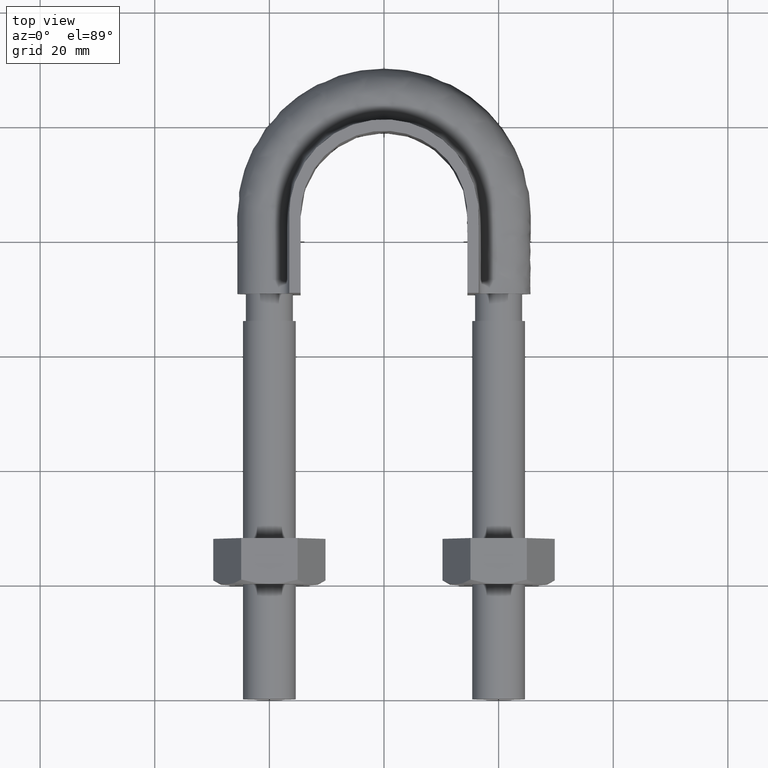
[diagram: clean part render]
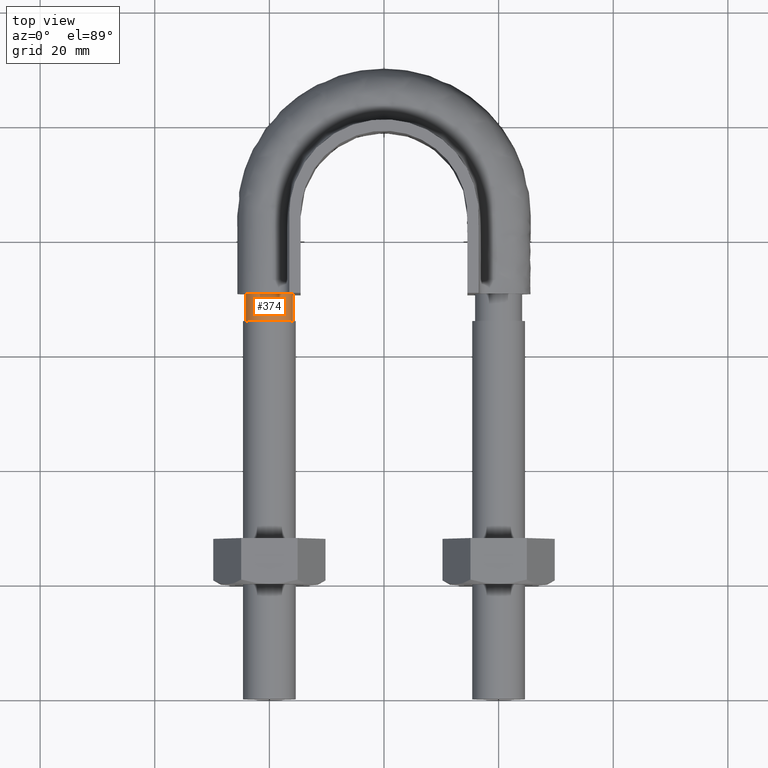
[diagram: same view with one face highlighted and labeled with its STEP entity id]
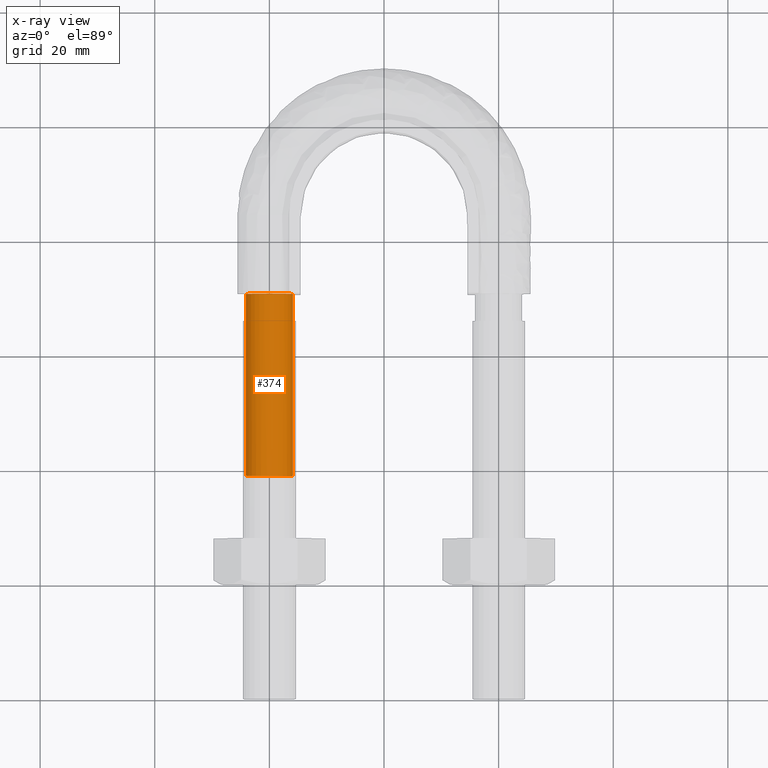
[diagram: x-ray of the same camera — body ghosted, the highlighted face saturated]
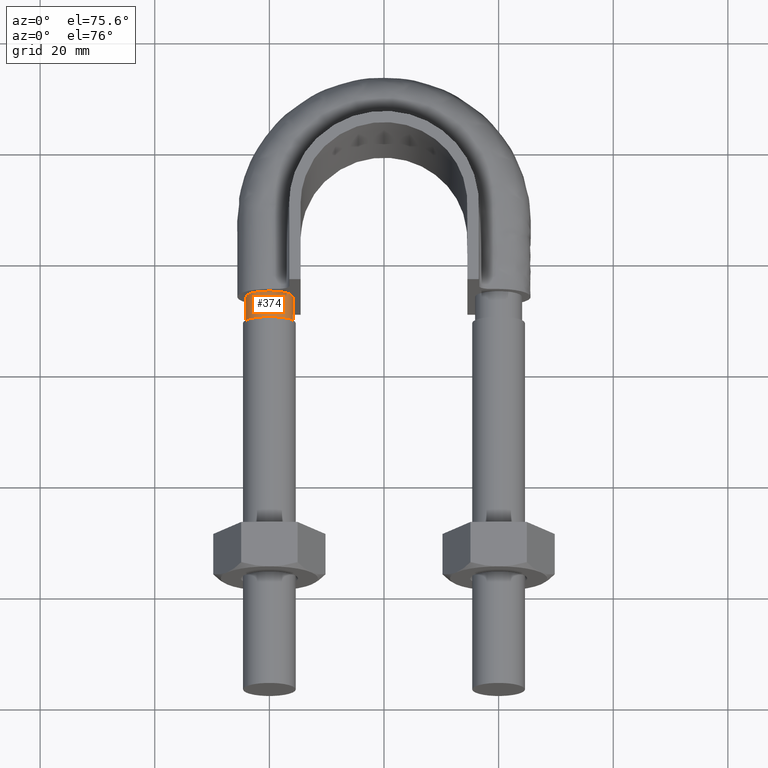
[diagram: same view with one face highlighted and labeled with its STEP entity id]
A machine part, top view. The second image highlights one B-rep face of the part: STEP entity #374.
The next image is the same camera in x-ray: the body ghosted, the highlighted face saturated — about 0% of this face is hidden behind the body in this view.
A second angle (auxiliary view) of the same face is appended — the face is thin or edge-on in the first view.
In plain terms, the highlighted cylindrical surface (bore or boss wall) has radius 4.1 mm, axis along (0, 1, 0).
Its self-contained STEP definition (entity closure, byte-faithful):
#374 = ADVANCED_FACE( '', ( #463, #464 ), #465, .T. );
#463 = FACE_OUTER_BOUND( '', #1282, .T. );
#464 = FACE_OUTER_BOUND( '', #1283, .T. );
#465 = CYLINDRICAL_SURFACE( '', #1284, 4.10000000000000 );
#1282 = EDGE_LOOP( '', ( #1654, #1655, #1656, #1657, #1658, #1659, #1660 ) );
#1283 = EDGE_LOOP( '', ( #1661 ) );
#1284 = AXIS2_PLACEMENT_3D( '', #1662, #1663, #1664 );
#1654 = ORIENTED_EDGE( '', *, *, #2101, .T. );
#1655 = ORIENTED_EDGE( '', *, *, #2102, .T. );
#1656 = ORIENTED_EDGE( '', *, *, #2103, .T. );
#1657 = ORIENTED_EDGE( '', *, *, #2104, .T. );
#1658 = ORIENTED_EDGE( '', *, *, #2105, .T. );
#1659 = ORIENTED_EDGE( '', *, *, #2106, .T. );
#1660 = ORIENTED_EDGE( '', *, *, #2100, .T. );
#1661 = ORIENTED_EDGE( '', *, *, #2107, .F. );
#1662 = CARTESIAN_POINT( '', ( -20.0000000000000, 70.7200000000000, 1.98080077730770E-015 ) );
#1663 = DIRECTION( '', ( 4.89842541528951E-016, 1.00000000000000, 6.12303176911189E-017 ) );
#1664 = DIRECTION( '', ( 1.00000000000000, -4.89842541528951E-016, -2.24949108273321E-032 ) );
#2100 = EDGE_CURVE( '', #2252, #2251, #2254, .T. );
#2101 = EDGE_CURVE( '', #2251, #2255, #2256, .T. );
#2102 = EDGE_CURVE( '', #2255, #2257, #2258, .T. );
#2103 = EDGE_CURVE( '', #2257, #2259, #2260, .T. );
#2104 = EDGE_CURVE( '', #2259, #2261, #2262, .T. );
#2105 = EDGE_CURVE( '', #2261, #2263, #2264, .T. );
#2106 = EDGE_CURVE( '', #2263, #2252, #2265, .T. );
#2107 = EDGE_CURVE( '', #2266, #2266, #2267, .T. );
#2251 = VERTEX_POINT( '', #2628 );
#2252 = VERTEX_POINT( '', #2629 );
#2254 = CIRCLE( '', #2634, 4.10000000000000 );
#2255 = VERTEX_POINT( '', #2635 );
#2256 = CIRCLE( '', #2636, 4.10000000000000 );
#2257 = VERTEX_POINT( '', #2637 );
#2258 = CIRCLE( '', #2638, 4.10000000000000 );
#2259 = VERTEX_POINT( '', #2639 );
#2260 = CIRCLE( '', #2640, 4.10000000000000 );
#2261 = VERTEX_POINT( '', #2641 );
#2262 = CIRCLE( '', #2642, 4.10000000000000 );
#2263 = VERTEX_POINT( '', #2643 );
#2264 = CIRCLE( '', #2644, 4.10000000000000 );
#2265 = CIRCLE( '', #2645, 4.10000000000000 );
#2266 = VERTEX_POINT( '', #2646 );
#2267 = CIRCLE( '', #2647, 4.10000000000000 );
#2628 = CARTESIAN_POINT( '', ( -15.9000000000000, 70.7200000000000, 4.33680868994202E-016 ) );
#2629 = CARTESIAN_POINT( '', ( -17.4436918123792, 70.7200000000000, -3.20550907811894 ) );
#2634 = AXIS2_PLACEMENT_3D( '', #3047, #3048, #3049 );
#2635 = CARTESIAN_POINT( '', ( -17.4436918123816, 70.7200000000000, 3.20550907812084 ) );
#2636 = AXIS2_PLACEMENT_3D( '', #3050, #3051, #3052 );
#2637 = CARTESIAN_POINT( '', ( -20.9123358292213, 70.7200000000000, 3.99720443994539 ) );
#2638 = AXIS2_PLACEMENT_3D( '', #3053, #3054, #3055 );
#2639 = CARTESIAN_POINT( '', ( -23.6939723584000, 70.7200000000000, 1.77892333038186 ) );
#2640 = AXIS2_PLACEMENT_3D( '', #3056, #3057, #3058 );
#2641 = CARTESIAN_POINT( '', ( -23.6939723583999, 70.7200000000000, -1.77892333038200 ) );
#2642 = AXIS2_PLACEMENT_3D( '', #3059, #3060, #3061 );
#2643 = CARTESIAN_POINT( '', ( -20.9123358292209, 70.7200000000000, -3.99720443994546 ) );
#2644 = AXIS2_PLACEMENT_3D( '', #3062, #3063, #3064 );
#2645 = AXIS2_PLACEMENT_3D( '', #3065, #3066, #3067 );
#2646 = CARTESIAN_POINT( '', ( -15.9000000000000, 39.0000000000000, 3.85751001454052E-017 ) );
#2647 = AXIS2_PLACEMENT_3D( '', #3068, #3069, #3070 );
#3047 = CARTESIAN_POINT( '', ( -20.0000000000000, 70.7200000000000, 1.98080077730770E-015 ) );
#3048 = DIRECTION( '', ( -4.89842541528951E-016, -1.00000000000000, -6.12303176911189E-017 ) );
#3049 = DIRECTION( '', ( 1.00000000000000, -4.89842541528951E-016, -2.10269764185003E-032 ) );
#3050 = CARTESIAN_POINT( '', ( -20.0000000000000, 70.7200000000000, 1.98080077730770E-015 ) );
#3051 = DIRECTION( '', ( -4.89842541528951E-016, -1.00000000000000, -6.12303176911189E-017 ) );
#3052 = DIRECTION( '', ( 1.00000000000000, -4.89842541528951E-016, -2.10269764185003E-032 ) );
#3053 = CARTESIAN_POINT( '', ( -20.0000000000000, 70.7200000000000, 1.98080077730770E-015 ) );
#3054 = DIRECTION( '', ( -4.89842541528951E-016, -1.00000000000000, -6.12303176911189E-017 ) );
#3055 = DIRECTION( '', ( 1.00000000000000, -4.89842541528951E-016, -2.10269764185003E-032 ) );
#3056 = CARTESIAN_POINT( '', ( -20.0000000000000, 70.7200000000000, 1.98080077730770E-015 ) );
#3057 = DIRECTION( '', ( -4.89842541528951E-016, -1.00000000000000, -6.12303176911189E-017 ) );
#3058 = DIRECTION( '', ( 1.00000000000000, -4.89842541528951E-016, -2.10269764185003E-032 ) );
#3059 = CARTESIAN_POINT( '', ( -20.0000000000000, 70.7200000000000, 1.98080077730770E-015 ) );
#3060 = DIRECTION( '', ( -4.89842541528951E-016, -1.00000000000000, -6.12303176911189E-017 ) );
#3061 = DIRECTION( '', ( 1.00000000000000, -4.89842541528951E-016, -2.10269764185003E-032 ) );
#3062 = CARTESIAN_POINT( '', ( -20.0000000000000, 70.7200000000000, 1.98080077730770E-015 ) );
#3063 = DIRECTION( '', ( -4.89842541528951E-016, -1.00000000000000, -6.12303176911189E-017 ) );
#3064 = DIRECTION( '', ( 1.00000000000000, -4.89842541528951E-016, -2.10269764185003E-032 ) );
#3065 = CARTESIAN_POINT( '', ( -20.0000000000000, 70.7200000000000, 1.98080077730770E-015 ) );
#3066 = DIRECTION( '', ( -4.89842541528951E-016, -1.00000000000000, -6.12303176911189E-017 ) );
#3067 = DIRECTION( '', ( 1.00000000000000, -4.89842541528951E-016, -2.10269764185003E-032 ) );
#3068 = CARTESIAN_POINT( '', ( -20.0000000000000, 39.0000000000000, 3.85751001454053E-017 ) );
#3069 = DIRECTION( '', ( -4.89842541528951E-016, -1.00000000000000, -6.12303176911189E-017 ) );
#3070 = DIRECTION( '', ( 1.00000000000000, -4.89842541528951E-016, -2.10269764185003E-032 ) );